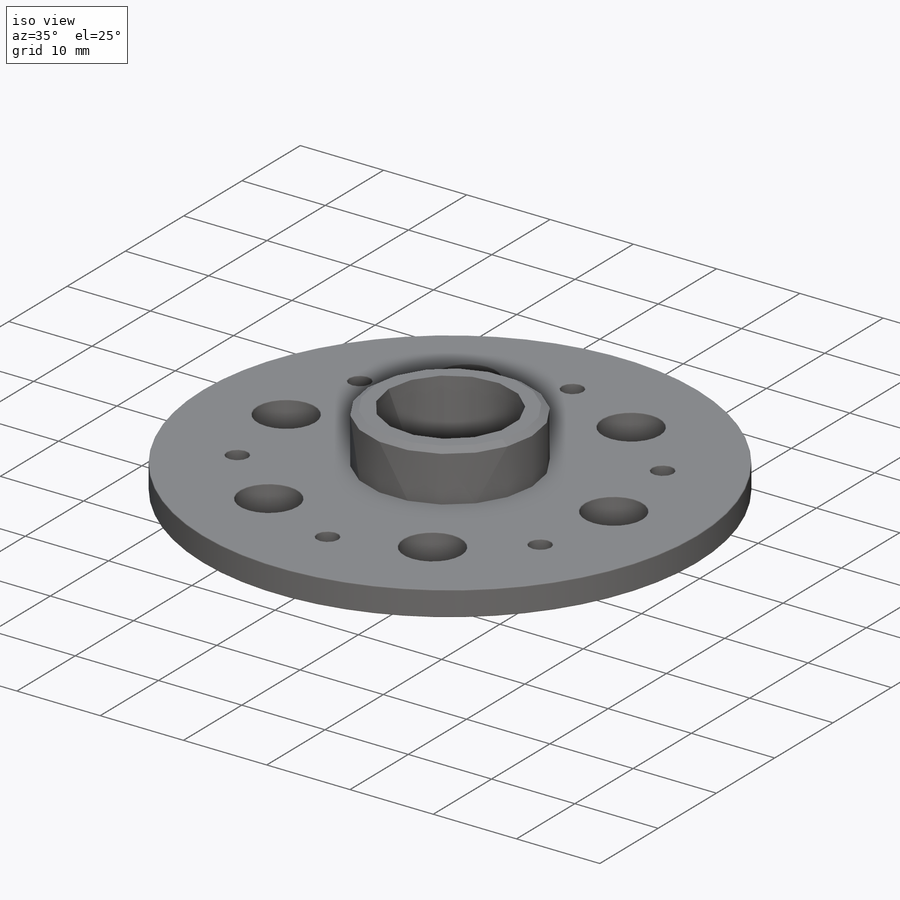
[diagram: iso view]
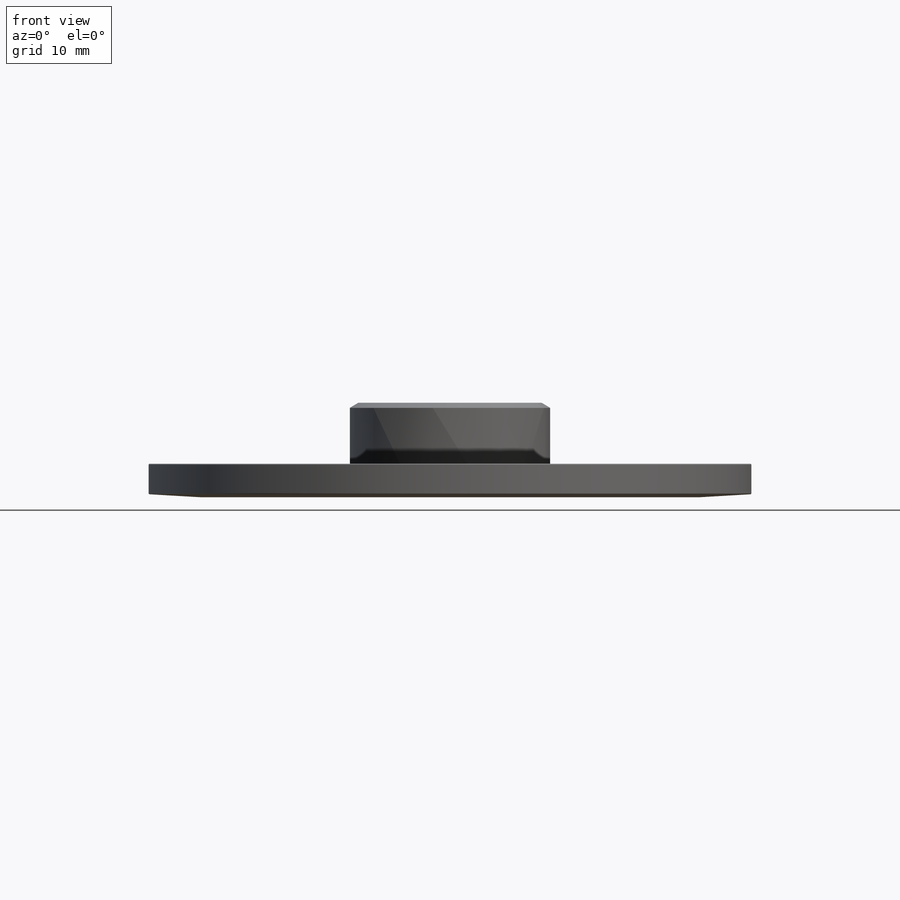
[diagram: front view]
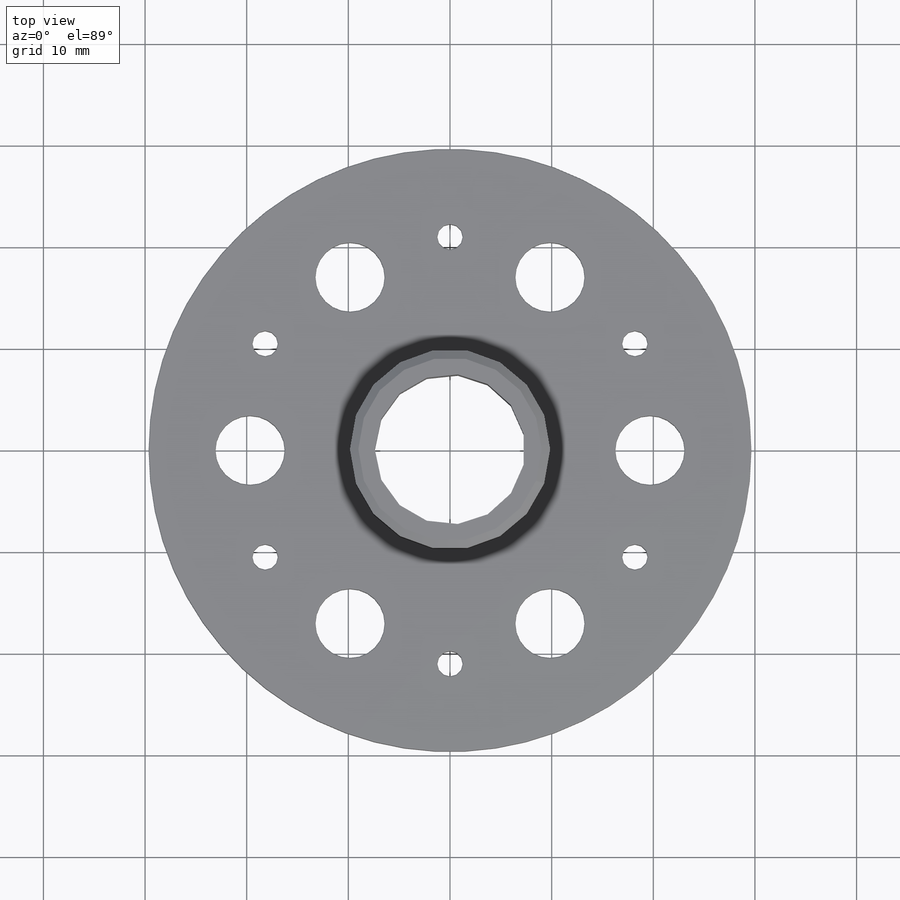
[diagram: top view]
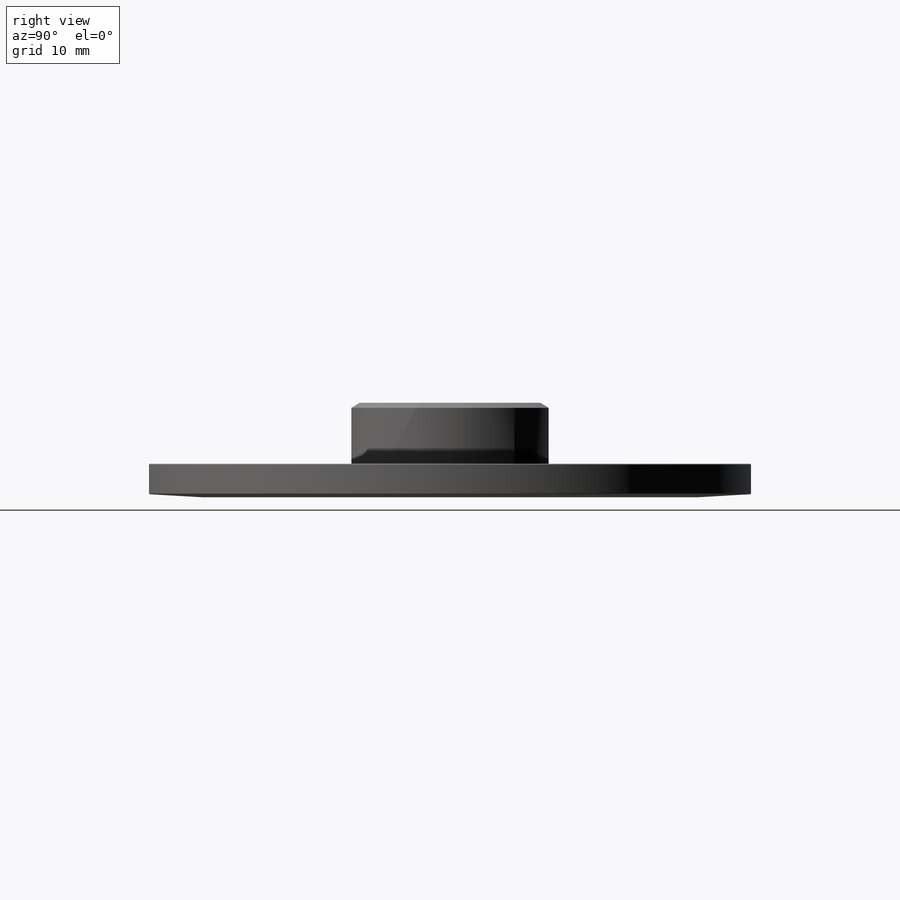
[diagram: right view]
SOLIDWORKS PART (.sldprt)
format: sldprt  version: not decoded by parser v0  size: 350,720 bytes
history: native  units: mm
features: plane x3, sketch x3, cut_extrude x2, material x1, revolve x1, fillet x1 (+10 scaffold rows collapsed)
feature tree (21):
  scaffold x10  (default folders/planes/origin — collapsed)
  material  "Материал <не указан>"
  plane  "Спереди"
  plane  "Сверху"
  plane  "Справа"
  sketch  "Эскиз1"  dims[c1.D1=7.4mm c1.D2=9.85mm c1.D3=~5.227829mm c2.D2=9.85mm c2.D3=6.0mm c2.D1=7.4mm c2.D4=29.65mm c2.D5=3.0mm c2.D6=20.0mm c2.D7=9.0mm c2.D8=1.2mm c3.D2=5.5mm c3.D3=~0.831797mm c3.D9=~1.618203mm c3.D10=0.5mm c3.D11=24.5mm c3.D12=3.0mm c3.D5=3.3mm c4.D12=3.0mm]
  revolve  "Повернуть1"  Angle=360deg
  sketch  "Эскиз3"  dims[D1=30.0mm]
  cut_extrude  "Вырез-Вытянуть2"  Depth=0.2mm
  sketch  "Эскиз4"  dims[c1.D1=2.5mm c1.D4=6.8mm c1.D2=21.0mm c1.D3=21.0mm c1.D5=~19.667526mm c2.D3=6.0 c2.D6=6.0]
  cut_extrude  "Вырез-Вытянуть3"  [1 undecoded]
  fillet  "Скругление3"  Radius=0.1mm
decode coverage: 6 of 7 modeling features carry decoded parameters
note: ~ marks probable driven/reference dimensions
note: 1 parameter value undecoded
note: suppression state not decoded; provenance and decode notes live in map.json
